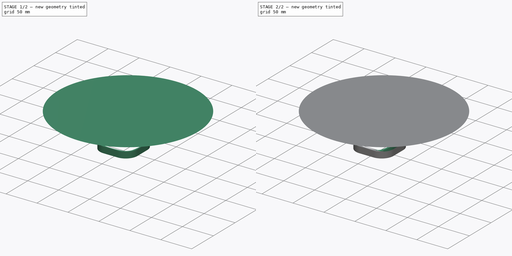
[diagram: build sequence overview — one tinted view per stage of 2, left to right]
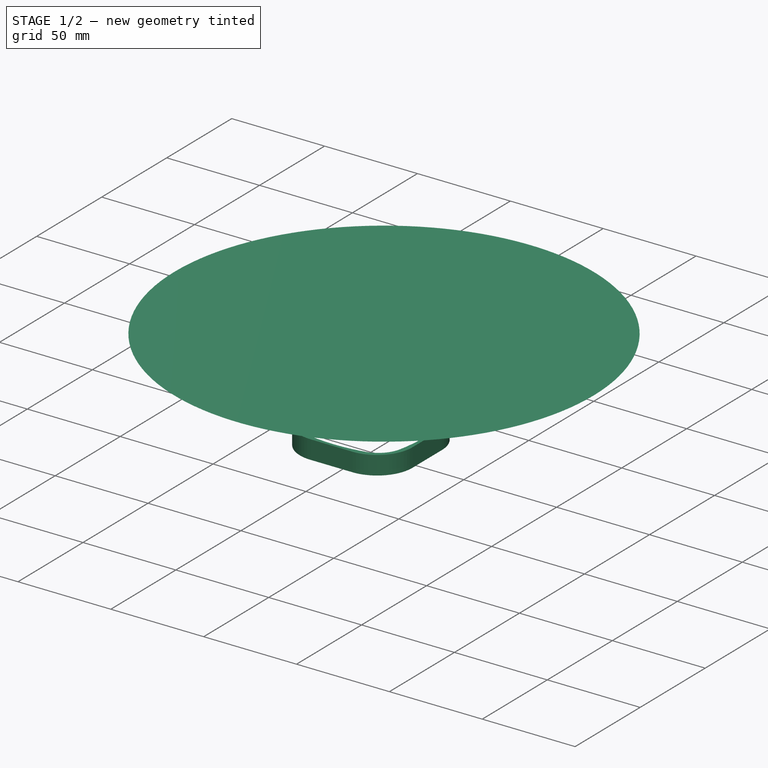
[diagram: stage 1 of 2 — iso view after this stage's code; geometry added in this stage tinted green]
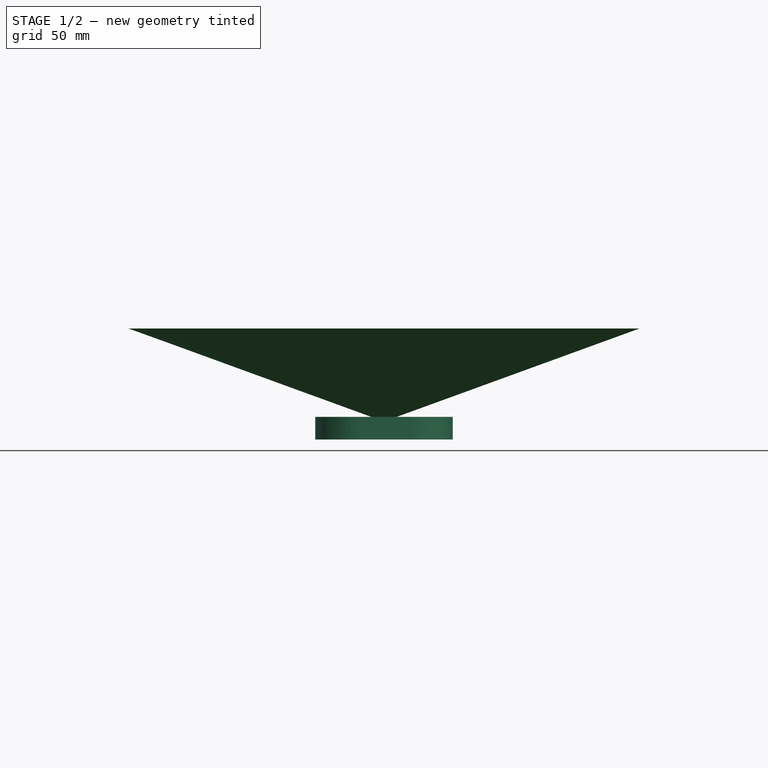
[diagram: stage 1 of 2 — front view after this stage's code; geometry added in this stage tinted green]
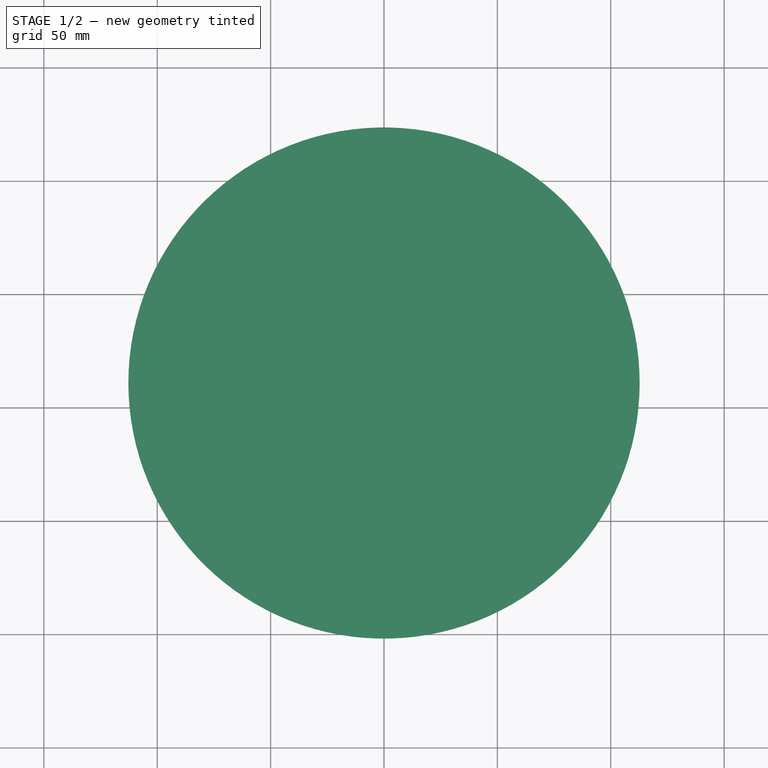
[diagram: stage 1 of 2 — top view after this stage's code; geometry added in this stage tinted green]
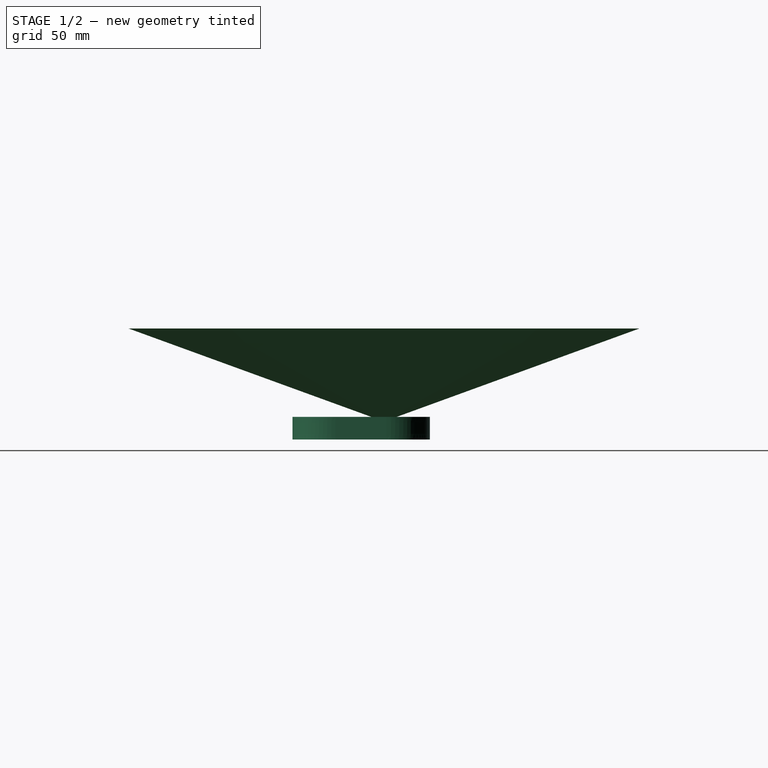
[diagram: stage 1 of 2 — right view after this stage's code; geometry added in this stage tinted green]
FCSTD DOCUMENT  (FreeCAD 0.21R33694 (Git))
Label: EufySunVisor
License: All rights reserved
LicenseURL: http://en.wikipedia.org/wiki/All_rights_reserved
objects: Sketcher::SketchObject×3, PartDesign::Pad×3, PartDesign::Body×2, Image::ImagePlane×1, PartDesign::Pocket×1
note: 13 computed .brp shape members not serialized (recipe doc carries the construction recipe); baked Part::Feature solids carry a one-line shape summary decoded from their .brp

FEATURE [Sketcher::SketchObject] Sketch
  FullyConstrained = true
  MapMode = 5
  Support = -> [XY_Plane]
  expr: Constraints[26] = .Constraints.radius_side
  expr: Constraints[50] = .Constraints.wall_thickness
  expr: Constraints[51] = .Constraints.width
  sketch-geometry (22):
    g0: ArcOfCircle CenterX=-13.3382 CenterY=13.3382 CenterZ=0 NormalX=0 NormalY=0 NormalZ=1 AngleXU=0 Radius=14 StartAngle=1.77429 EndAngle=2.9381
    g1: ArcOfCircle CenterX=13.3382 CenterY=13.3382 CenterZ=0 NormalX=0 NormalY=0 NormalZ=1 AngleXU=0 Radius=14 StartAngle=0.203495 EndAngle=1.3673
    g2: ArcOfCircle CenterX=13.3382 CenterY=-13.3382 CenterZ=0 NormalX=0 NormalY=0 NormalZ=1 AngleXU=0 Radius=14 StartAngle=4.91588 EndAngle=6.07969
    g3: ArcOfCircle CenterX=-13.3382 CenterY=-13.3382 CenterZ=0 NormalX=0 NormalY=0 NormalZ=1 AngleXU=0 Radius=14 StartAngle=3.34509 EndAngle=4.50889
    g4: ArcOfCircle CenterX=-51.3 CenterY=0 CenterZ=0 NormalX=0 NormalY=0 NormalZ=1 AngleXU=0 Radius=80 StartAngle=6.07969 EndAngle=6.48668
    g5: ArcOfCircle CenterX=-1.61e-14 CenterY=-51.3 CenterZ=0 NormalX=0 NormalY=0 NormalZ=1 AngleXU=0 Radius=80 StartAngle=1.3673 EndAngle=1.77429
    g6: ArcOfCircle CenterX=51.3 CenterY=0 CenterZ=0 NormalX=0 NormalY=0 NormalZ=1 AngleXU=0 Radius=80 StartAngle=2.9381 EndAngle=3.34509
    g7: ArcOfCircle CenterX=0 CenterY=51.3 CenterZ=0 NormalX=0 NormalY=0 NormalZ=1 AngleXU=0 Radius=80 StartAngle=4.50889 EndAngle=4.91588
    g8: GeomPoint X=-28.7 Y=0 Z=0
    g9: GeomPoint X=28.7 Y=0 Z=0
    g10: GeomPoint X=0 Y=-28.7 Z=0
    g11: GeomPoint X=0 Y=28.7 Z=0
    g12: ArcOfCircle CenterX=-11.3 CenterY=11.3 CenterZ=0 NormalX=0 NormalY=0 NormalZ=1 AngleXU=0 Radius=19 StartAngle=1.5708 EndAngle=3.14159
    g13: LineSegment StartX=-11.3 StartY=30.3 StartZ=0 EndX=11.3 EndY=30.3 EndZ=0
    g14: ArcOfCircle CenterX=11.3 CenterY=11.3 CenterZ=0 NormalX=0 NormalY=0 NormalZ=1 AngleXU=0 Radius=19 StartAngle=0 EndAngle=1.5708
    g15: LineSegment StartX=30.3 StartY=11.3 StartZ=0 EndX=30.3 EndY=-11.3 EndZ=0
    g16: ArcOfCircle CenterX=11.3 CenterY=-11.3 CenterZ=0 NormalX=0 NormalY=0 NormalZ=1 AngleXU=0 Radius=19 StartAngle=4.71239 EndAngle=6.28319
    g17: LineSegment StartX=11.3 StartY=-30.3 StartZ=0 EndX=-11.3 EndY=-30.3 EndZ=0
    g18: ArcOfCircle CenterX=-11.3 CenterY=-11.3 CenterZ=0 NormalX=0 NormalY=0 NormalZ=1 AngleXU=0 Radius=19 StartAngle=3.14159 EndAngle=4.71239
    g19: LineSegment StartX=-30.3 StartY=-11.3 StartZ=0 EndX=-30.3 EndY=11.3 EndZ=0
    g20: GeomPoint X=-30.3 Y=30.3 Z=0
    g21: GeomPoint X=30.3 Y=-30.3 Z=0
  constraints (54):
    c: Equal(g0,g1)
    c: Equal(g1,g2)
    c: Equal(g2,g3)
    c: PointOnObject(g4,g-1)
    c: Tangent(g4,g2) = -1.5708
    c: Tangent(g4,g1) = -1.5708
    c: Tangent(g5,g1) = -1.5708
    c: Tangent(g0,g5) = -1.5708
    c: Horizontal(g1,g0)
    c: PointOnObject(g6,g-1)
    c: Tangent(g6,g0) = -1.5708
    c: Tangent(g6,g3) = -1.5708
    c: PointOnObject(g7,g-2)
    c: Tangent(g7,g3) = -1.5708
    c: Tangent(g7,g2) = -1.5708
    c: Symmetric(g2,g0,g-1)
    c: PointOnObject(g8,g-1)
    c: PointOnObject(g8,g6)
    c: PointOnObject(g9,g4)
    c: PointOnObject(g9,g-1)
    c: PointOnObject(g10,g7)
    c: PointOnObject(g10,g-2)
    c: PointOnObject(g11,g5)
    c: PointOnObject(g11,g-2)
    c: Equal(g4,g6)
    c: Equal(g7,g5)
    c: Radius(g4) = 80
    c: Radius(g5) = 80  'radius_side'
    c: Radius(g0) = 14
    c: Tangent(g12,g13) = 1.5708
    c: Tangent(g13,g14) = 1.5708
    c: Tangent(g14,g15) = 1.5708
    c: Tangent(g15,g16) = 1.5708
    c: Tangent(g16,g17) = 1.5708
    c: Tangent(g17,g18) = 1.5708
    c: Tangent(g18,g19) = 1.5708
    c: Tangent(g19,g12) = 1.5708
    c: Horizontal(g13)
    c: Horizontal(g17)
    c: Vertical(g15)
    c: Vertical(g19)
    c: Equal(g12,g14)
    c: Equal(g14,g16)
    c: Equal(g16,g18)
    c: PointOnObject(g20,g13)
    c: PointOnObject(g20,g19)
    c: PointOnObject(g21,g15)
    c: PointOnObject(g21,g17)
    c: Symmetric(g20,g21,g-1)
    c: DistanceY(g11,g12) = 1.6  'wall_thickness'
    c: DistanceX(g18,g8) = 1.6
    c: DistanceX(g8,g9) = 57.4
    c: DistanceY(g10,g11) = 57.4  'width'
    c: Radius(g12) = 19
FEATURE [PartDesign::Pad] Pad
  Direction = (0,0,1)
  Length = 10
  Length2 = 10
  Profile = -> Sketch
  ReferenceAxis = -> Sketch [N_Axis]
  Reversed = true
  TaperAngle = 0.03
  Type = 0
FEATURE [PartDesign::Body] Body
  Group = -> [Sketch,Pad,Pad001,Sketch001,Pocket]
  Origin = -> Origin
  Tip = -> Pocket
FEATURE [Sketcher::SketchObject] Sketch002
  FullyConstrained = false
  MapMode = 5
  Support = -> [XY_Plane001]
  sketch-geometry (1):
    g0: Circle CenterX=0 CenterY=10.0771 CenterZ=0 NormalX=0 NormalY=0 NormalZ=1 AngleXU=0 Radius=5.60029
  constraints (1):
    c: PointOnObject(g0,g-2)
FEATURE [PartDesign::Pad] Pad002
  Direction = (0,0,1)
  Length = 39
  Length2 = 10
  Profile = -> Sketch002
  ReferenceAxis = -> Sketch002 [N_Axis]
  TaperAngle = 70
  Type = 0
FEATURE [PartDesign::Body] Body001
  Group = -> [Sketch002,Pad002]
  Origin = -> Origin001
  Tip = -> Pad002
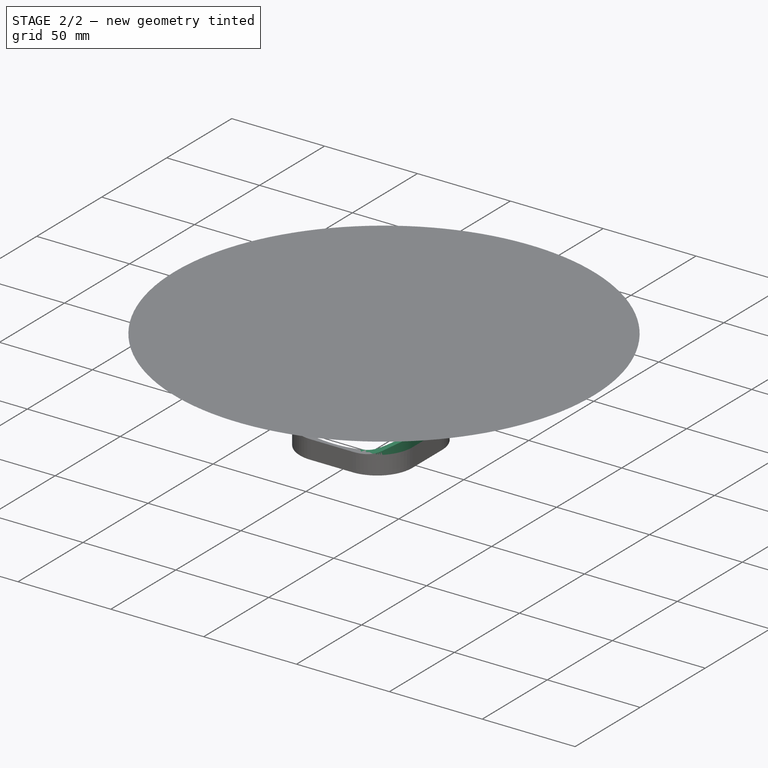
[diagram: stage 2 of 2 — iso view after this stage's code; geometry added in this stage tinted green]
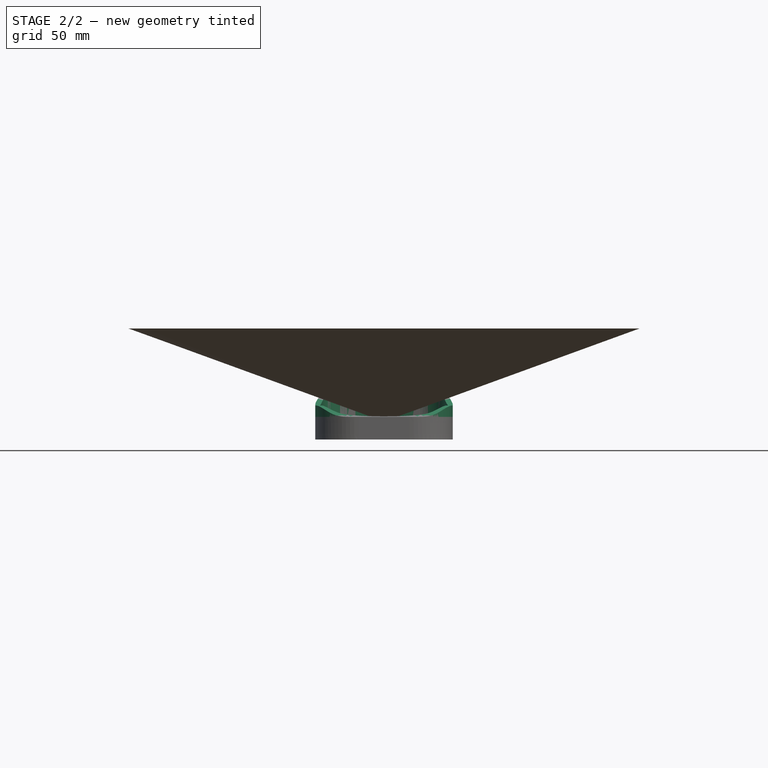
[diagram: stage 2 of 2 — front view after this stage's code; geometry added in this stage tinted green]
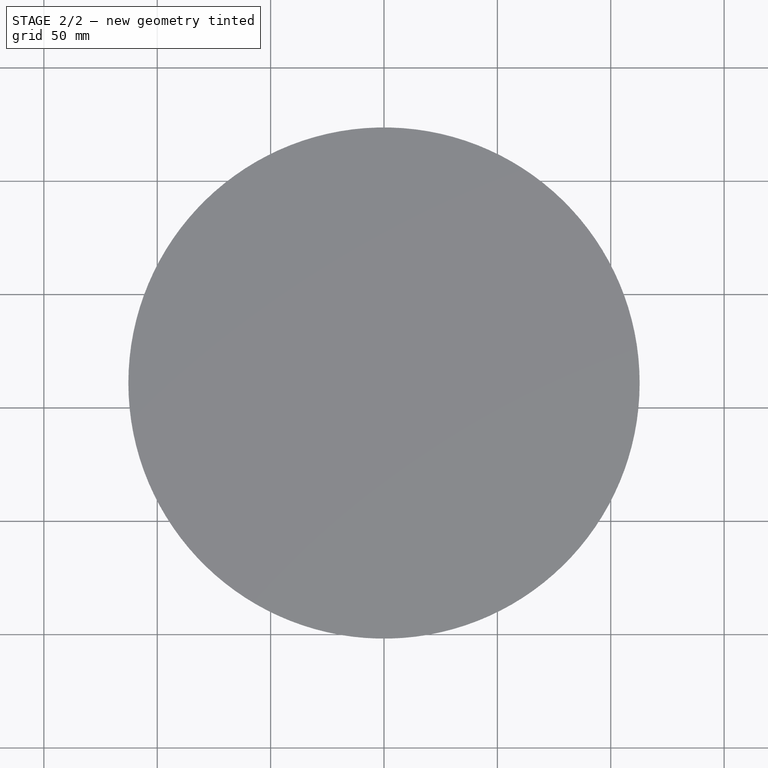
[diagram: stage 2 of 2 — top view after this stage's code; geometry added in this stage tinted green]
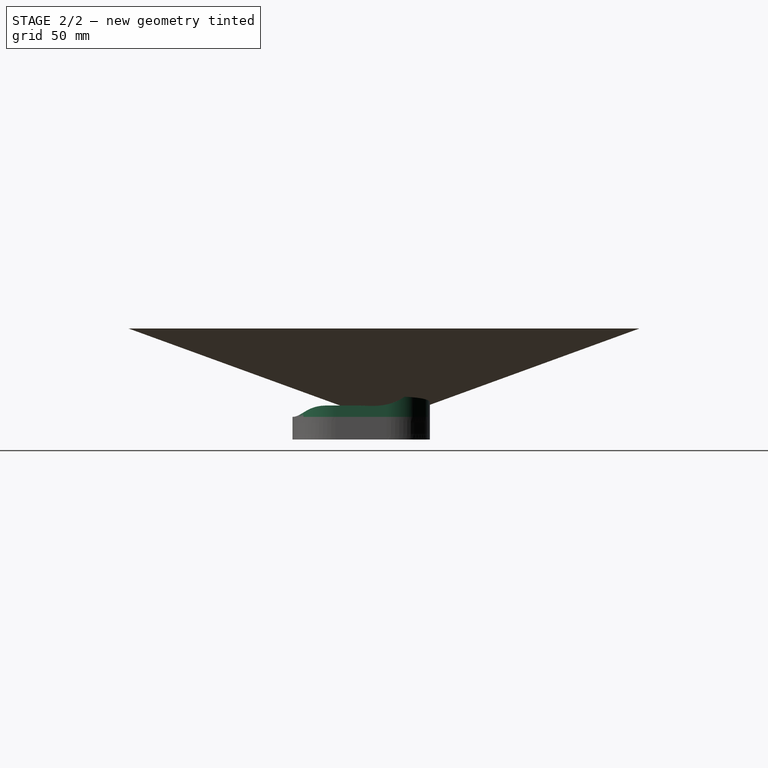
[diagram: stage 2 of 2 — right view after this stage's code; geometry added in this stage tinted green]
FEATURE [Image::ImagePlane] front_view  label="front-view"
  XSize = 60
  YSize = 60
FEATURE [PartDesign::Pad] Pad001
  BaseFeature = -> Pad
  Direction = (0,0,1)
  Length = 20
  Length2 = 10
  Profile = -> Sketch
  ReferenceAxis = -> Sketch [N_Axis]
  Type = 0
FEATURE [Sketcher::SketchObject] Sketch001
  ExternalGeometry = -> [Pad001]
  FullyConstrained = false
  MapMode = 5
  Placement = pos=(30.3,0,0) rot=(0.57735,0.57735,0.57735;2.0944rad)
  Support = -> [Pad001]
  sketch-geometry (21):
    g0: LineSegment StartX=26.7 StartY=20 StartZ=0 EndX=-30.3 EndY=20 EndZ=0
    g1: LineSegment StartX=-30.3 StartY=20 StartZ=0 EndX=-30.3 EndY=0 EndZ=0
    g2: LineSegment StartX=-0.871639 StartY=5 StartZ=0 EndX=-15.2022 EndY=5 EndZ=0
    g3-g6: Circle x4 (B-spline internal-alignment scaffolding for g7; pole/knot coordinates omitted)
    g7: BSplineCurve PolesCount=4 KnotsCount=2 Degree=3 IsPeriodic=0
    g8: GeomPoint X=-15.2022 Y=5 Z=0
    g9: GeomPoint X=-30.3 Y=0 Z=0
    g10-g15: Circle x6 (B-spline internal-alignment scaffolding for g16; pole/knot coordinates omitted)
    g16: BSplineCurve PolesCount=6 KnotsCount=4 Degree=3 IsPeriodic=0
    g17-g20: GeomPoint x4 (B-spline internal-alignment scaffolding for g16; pole/knot coordinates omitted)
  constraints (27):
    c: Coincident(g0,g-7)
    c: Horizontal(g0)
    c: Coincident(g0,g1)
    c: DistanceX(g0,g0) = 57
    c: Coincident(g1,g-7)
    c: Horizontal(g2)
    c: Weight(g3) = 1
    c: Coincident(g7,g2)
    c: Equal(g3,g4)
    c: Equal(g3,g5)
    c: Equal(g3,g6)
    c: Coincident(g7,g1)
    c: InternalAlignment(g3-g6 -> g7) x4
    c: InternalAlignment(g8,g7)
    c: InternalAlignment(g9,g7)
    c: PointOnObject(g5,g-5)
    c: PointOnObject(g4,g2)
    c: Weight(g10) = 1
    c: Coincident(g16,g0)
    c: Equal(g10,g11)
    c: PointOnObject(g11,g0)
    c: Equal(g10, g12-g15) x4
    c: Coincident(g16,g2)
    c: InternalAlignment(g10-g15 -> g16) x6
    c: InternalAlignment(g17-g20 -> g16) x4
    c: PointOnObject(g14,g2)
    c: DistanceY(g-5,g2) = 5
FEATURE [PartDesign::Pocket] Pocket
  BaseFeature = -> Pad001
  Direction = (-1,0,0)
  Length = 5
  Length2 = 5
  Profile = -> Sketch001
  ReferenceAxis = -> Sketch001 [N_Axis]
  Type = 1
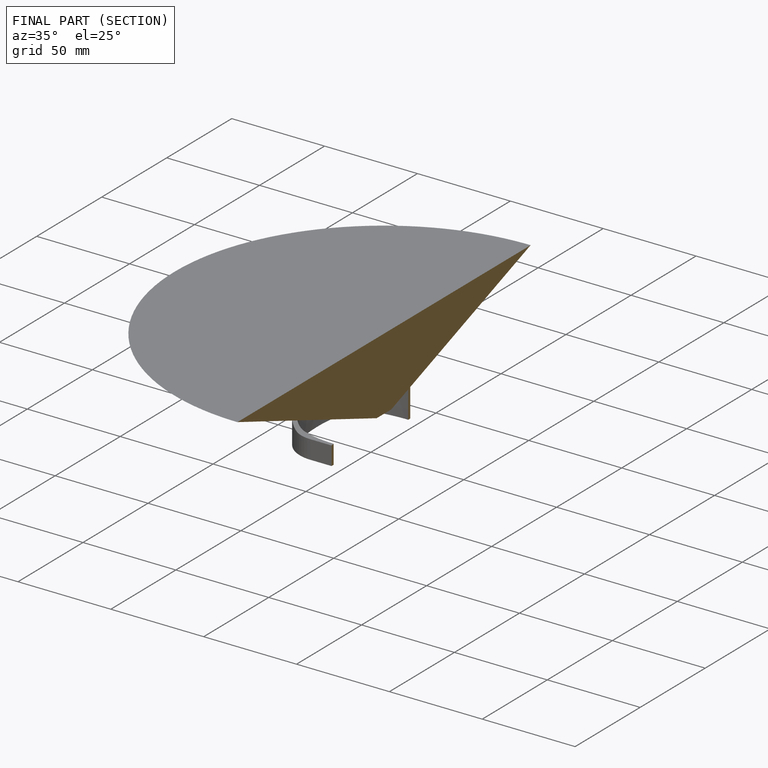
[diagram: finished part — half-section view (interior)]
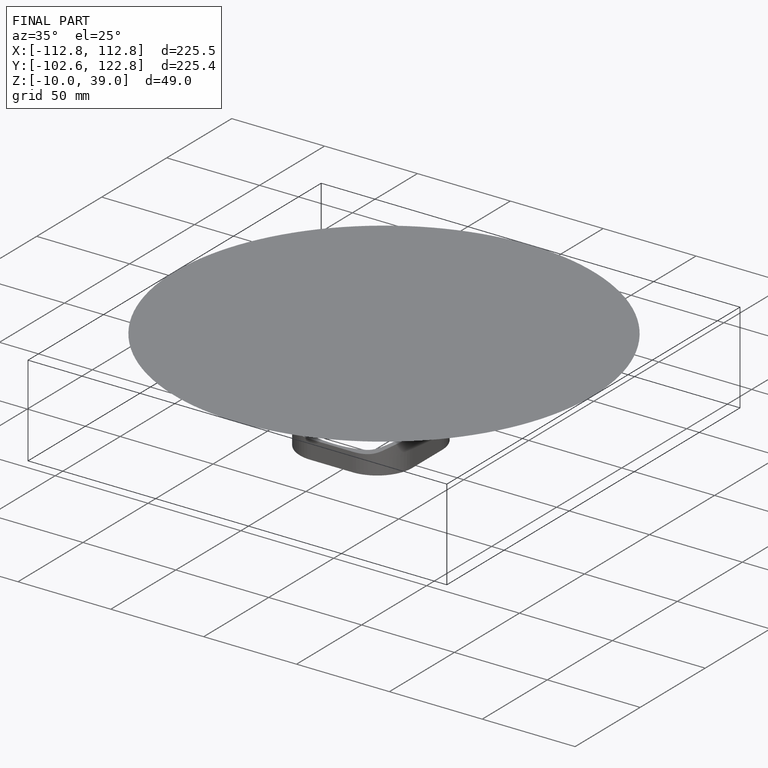
[diagram: finished part — iso view with bounding-box wireframe]
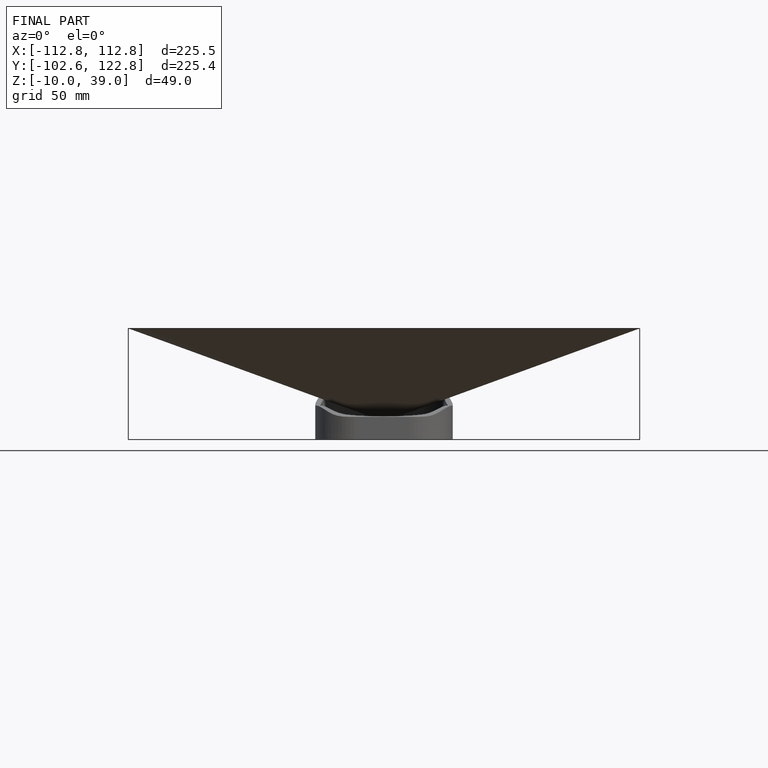
[diagram: finished part — front view with bounding-box wireframe]
